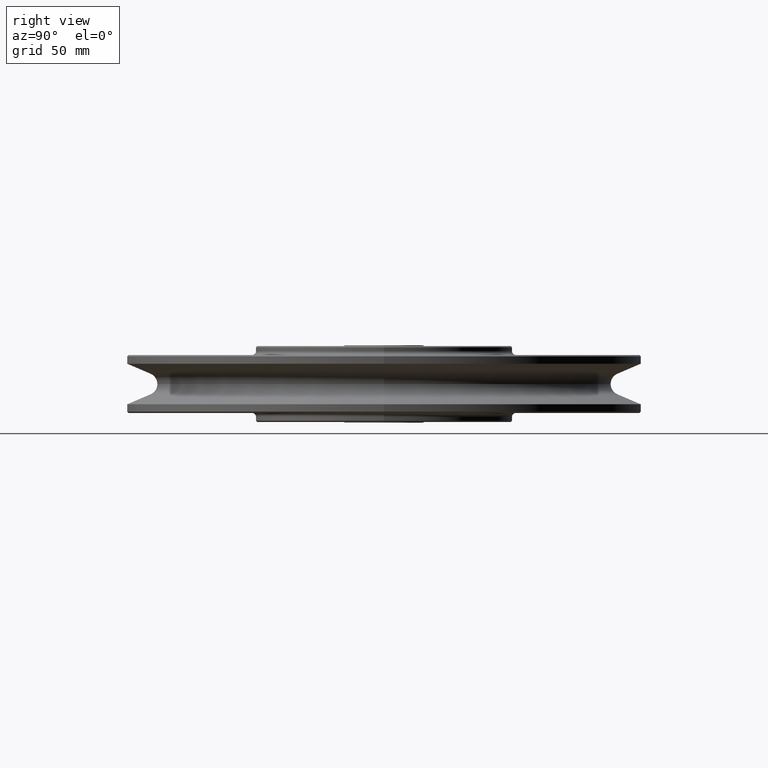
[diagram: clean part render]
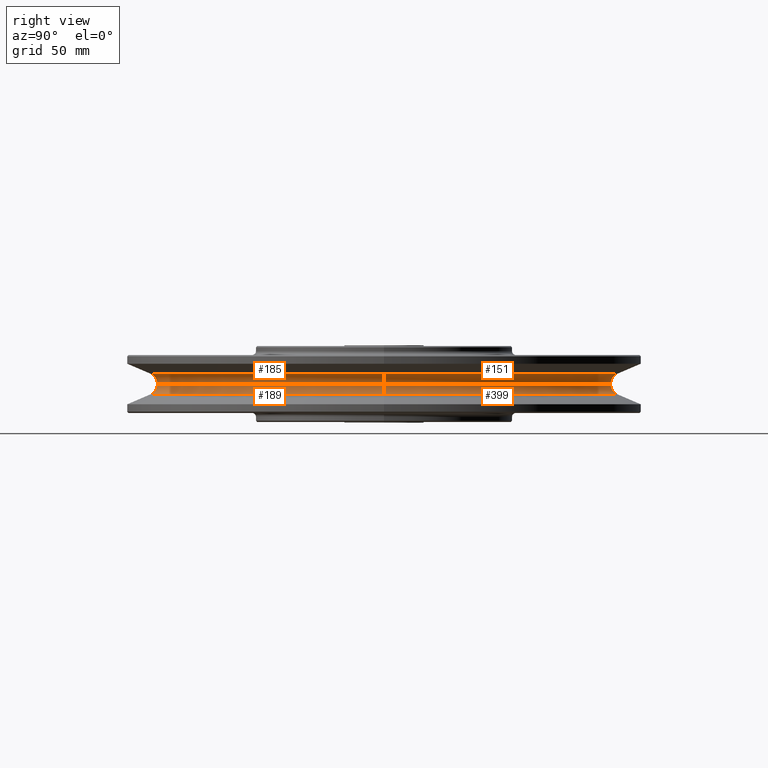
[diagram: same view with one multi-face feature highlighted, each face labeled with its STEP entity id]
A machine part, right view. The highlighted faces form ONE feature: a constant-radius fillet chain: 4 tangent blend faces with common blend radius 8.7 mm. The faces share edges in the B-rep.
Their STEP definitions:
[1] entity #399 (Torus):
#399=ADVANCED_FACE('',(#817),#818,.F.);
#817=FACE_OUTER_BOUND('',#1227,.T.);
#818=TOROIDAL_SURFACE('',#1228,184.7000001863,8.70000018630001);
#1227=EDGE_LOOP('',(#2547,#2548,#2549,#2550));
#1228=AXIS2_PLACEMENT_3D('',#2551,#2552,#2553);
#2547=ORIENTED_EDGE('',*,*,#2564,.T.);
#2548=ORIENTED_EDGE('',*,*,#2658,.T.);
#2549=ORIENTED_EDGE('',*,*,#2663,.T.);
#2550=ORIENTED_EDGE('',*,*,#2656,.T.);
#2551=CARTESIAN_POINT('',(0.0,0.0,0.0));
#2552=DIRECTION('',(0.0,0.0,1.0));
#2553=DIRECTION('',(1.0,0.0,0.0));
#2564=EDGE_CURVE('',#3103,#3104,#3105,.T.);
#2656=EDGE_CURVE('',#3265,#3103,#3266,.T.);
#2658=EDGE_CURVE('',#3104,#3267,#3269,.T.);
#2663=EDGE_CURVE('',#3267,#3265,#3276,.T.);
#3103=VERTEX_POINT('',#3920);
#3104=VERTEX_POINT('',#3921);
#3105=CIRCLE('',#3922,176.0);
#3265=VERTEX_POINT('',#5300);
#3266=CIRCLE('',#5301,8.70000018630001);
#3267=VERTEX_POINT('',#5302);
#3269=CIRCLE('',#5304,8.70000018630001);
#3276=CIRCLE('',#5313,181.370654);
#3920=CARTESIAN_POINT('',(-176.0,2.4455025178662E-014,1.06544273807337E-015));
#3921=CARTESIAN_POINT('',(176.0,-2.4455025178662E-014,1.06544273807337E-015));
#3922=AXIS2_PLACEMENT_3D('',#9118,#9119,#9120);
#5300=CARTESIAN_POINT('',(-181.370654,2.22114990880362E-014,-8.037752));
#5301=AXIS2_PLACEMENT_3D('',#9237,#9238,#9239);
#5302=CARTESIAN_POINT('',(181.370654,0.0,-8.037752));
#5304=AXIS2_PLACEMENT_3D('',#9243,#9244,#9245);
#5313=AXIS2_PLACEMENT_3D('',#9251,#9252,#9253);
#9118=CARTESIAN_POINT('',(0.0,0.0,1.06544273807337E-015));
#9119=DIRECTION('',(-0.0,0.0,-1.0));
#9120=DIRECTION('',(-1.0,0.0,0.0));
#9237=CARTESIAN_POINT('',(-184.7000001863,2.26192264030668E-014,0.0));
#9238=DIRECTION('',(-1.22464679914735E-016,-1.0,0.0));
#9239=DIRECTION('',(-1.0,1.22464679914735E-016,-0.0));
#9243=CARTESIAN_POINT('',(184.7000001863,-2.26192264030668E-014,0.0));
#9244=DIRECTION('',(-1.22464679914735E-016,-1.0,0.0));
#9245=DIRECTION('',(1.0,-1.22464679914735E-016,0.0));
#9251=CARTESIAN_POINT('',(0.0,0.0,-8.037752));
#9252=DIRECTION('',(0.0,0.0,1.0));
#9253=DIRECTION('',(1.0,0.0,0.0));
[2] entity #189 (Torus):
#189=ADVANCED_FACE('',(#478),#479,.F.);
#478=FACE_OUTER_BOUND('',#888,.T.);
#479=TOROIDAL_SURFACE('',#889,184.7000001863,8.70000018630001);
#888=EDGE_LOOP('',(#1387,#1388,#1389,#1390));
#889=AXIS2_PLACEMENT_3D('',#1391,#1392,#1393);
#1387=ORIENTED_EDGE('',*,*,#2649,.T.);
#1388=ORIENTED_EDGE('',*,*,#2656,.F.);
#1389=ORIENTED_EDGE('',*,*,#2657,.T.);
#1390=ORIENTED_EDGE('',*,*,#2658,.F.);
#1391=CARTESIAN_POINT('',(0.0,0.0,0.0));
#1392=DIRECTION('',(0.0,0.0,1.0));
#1393=DIRECTION('',(1.0,0.0,0.0));
#2649=EDGE_CURVE('',#3104,#3103,#3256,.T.);
#2656=EDGE_CURVE('',#3265,#3103,#3266,.T.);
#2657=EDGE_CURVE('',#3265,#3267,#3268,.T.);
#2658=EDGE_CURVE('',#3104,#3267,#3269,.T.);
#3103=VERTEX_POINT('',#3920);
#3104=VERTEX_POINT('',#3921);
#3256=CIRCLE('',#5289,176.0);
#3265=VERTEX_POINT('',#5300);
#3266=CIRCLE('',#5301,8.70000018630001);
#3267=VERTEX_POINT('',#5302);
#3268=CIRCLE('',#5303,181.370654);
#3269=CIRCLE('',#5304,8.70000018630001);
#3920=CARTESIAN_POINT('',(-176.0,2.4455025178662E-014,1.06544273807337E-015));
#3921=CARTESIAN_POINT('',(176.0,-2.4455025178662E-014,1.06544273807337E-015));
#5289=AXIS2_PLACEMENT_3D('',#9226,#9227,#9228);
#5300=CARTESIAN_POINT('',(-181.370654,2.22114990880362E-014,-8.037752));
#5301=AXIS2_PLACEMENT_3D('',#9237,#9238,#9239);
#5302=CARTESIAN_POINT('',(181.370654,0.0,-8.037752));
#5303=AXIS2_PLACEMENT_3D('',#9240,#9241,#9242);
#5304=AXIS2_PLACEMENT_3D('',#9243,#9244,#9245);
#9226=CARTESIAN_POINT('',(0.0,0.0,1.06544273807337E-015));
#9227=DIRECTION('',(-0.0,0.0,-1.0));
#9228=DIRECTION('',(-1.0,0.0,0.0));
#9237=CARTESIAN_POINT('',(-184.7000001863,2.26192264030668E-014,0.0));
#9238=DIRECTION('',(-1.22464679914735E-016,-1.0,0.0));
#9239=DIRECTION('',(-1.0,1.22464679914735E-016,-0.0));
#9240=CARTESIAN_POINT('',(0.0,0.0,-8.037752));
#9241=DIRECTION('',(0.0,0.0,1.0));
#9242=DIRECTION('',(1.0,0.0,0.0));
#9243=CARTESIAN_POINT('',(184.7000001863,-2.26192264030668E-014,0.0));
#9244=DIRECTION('',(-1.22464679914735E-016,-1.0,0.0));
#9245=DIRECTION('',(1.0,-1.22464679914735E-016,0.0));
[3] entity #185 (Torus):
#185=ADVANCED_FACE('',(#472),#473,.F.);
#472=FACE_OUTER_BOUND('',#882,.T.);
#473=TOROIDAL_SURFACE('',#883,184.7000001863,8.70000018630001);
#882=EDGE_LOOP('',(#1371,#1372,#1373,#1374));
#883=AXIS2_PLACEMENT_3D('',#1375,#1376,#1377);
#1371=ORIENTED_EDGE('',*,*,#2649,.F.);
#1372=ORIENTED_EDGE('',*,*,#2567,.F.);
#1373=ORIENTED_EDGE('',*,*,#2650,.F.);
#1374=ORIENTED_EDGE('',*,*,#2565,.F.);
#1375=CARTESIAN_POINT('',(0.0,0.0,0.0));
#1376=DIRECTION('',(0.0,0.0,1.0));
#1377=DIRECTION('',(1.0,0.0,0.0));
#2565=EDGE_CURVE('',#3103,#3106,#3107,.T.);
#2567=EDGE_CURVE('',#3108,#3104,#3110,.T.);
#2649=EDGE_CURVE('',#3104,#3103,#3256,.T.);
#2650=EDGE_CURVE('',#3106,#3108,#3257,.T.);
#3103=VERTEX_POINT('',#3920);
#3104=VERTEX_POINT('',#3921);
#3106=VERTEX_POINT('',#3923);
#3107=CIRCLE('',#3924,8.70000018630001);
#3108=VERTEX_POINT('',#3925);
#3110=CIRCLE('',#3927,8.70000018630001);
#3256=CIRCLE('',#5289,176.0);
#3257=CIRCLE('',#5290,181.370654);
#3920=CARTESIAN_POINT('',(-176.0,2.4455025178662E-014,1.06544273807337E-015));
#3921=CARTESIAN_POINT('',(176.0,-2.4455025178662E-014,1.06544273807337E-015));
#3923=CARTESIAN_POINT('',(-181.370654,2.22114990880362E-014,8.037752));
#3924=AXIS2_PLACEMENT_3D('',#9121,#9122,#9123);
#3925=CARTESIAN_POINT('',(181.370654,0.0,8.037752));
#3927=AXIS2_PLACEMENT_3D('',#9127,#9128,#9129);
#5289=AXIS2_PLACEMENT_3D('',#9226,#9227,#9228);
#5290=AXIS2_PLACEMENT_3D('',#9229,#9230,#9231);
#9121=CARTESIAN_POINT('',(-184.7000001863,2.26192264030668E-014,0.0));
#9122=DIRECTION('',(-1.22464679914735E-016,-1.0,0.0));
#9123=DIRECTION('',(-1.0,1.22464679914735E-016,-0.0));
#9127=CARTESIAN_POINT('',(184.7000001863,-2.26192264030668E-014,0.0));
#9128=DIRECTION('',(-1.22464679914735E-016,-1.0,0.0));
#9129=DIRECTION('',(1.0,-1.22464679914735E-016,0.0));
#9226=CARTESIAN_POINT('',(0.0,0.0,1.06544273807337E-015));
#9227=DIRECTION('',(-0.0,0.0,-1.0));
#9228=DIRECTION('',(-1.0,0.0,0.0));
#9229=CARTESIAN_POINT('',(0.0,0.0,8.037752));
#9230=DIRECTION('',(0.0,0.0,1.0));
#9231=DIRECTION('',(1.0,0.0,0.0));
[4] entity #151 (Torus):
#151=ADVANCED_FACE('',(#421),#422,.F.);
#421=FACE_OUTER_BOUND('',#831,.T.);
#422=TOROIDAL_SURFACE('',#832,184.7000001863,8.70000018630001);
#831=EDGE_LOOP('',(#1235,#1236,#1237,#1238));
#832=AXIS2_PLACEMENT_3D('',#1239,#1240,#1241);
#1235=ORIENTED_EDGE('',*,*,#2564,.F.);
#1236=ORIENTED_EDGE('',*,*,#2565,.T.);
#1237=ORIENTED_EDGE('',*,*,#2566,.F.);
#1238=ORIENTED_EDGE('',*,*,#2567,.T.);
#1239=CARTESIAN_POINT('',(0.0,0.0,0.0));
#1240=DIRECTION('',(0.0,0.0,1.0));
#1241=DIRECTION('',(1.0,0.0,0.0));
#2564=EDGE_CURVE('',#3103,#3104,#3105,.T.);
#2565=EDGE_CURVE('',#3103,#3106,#3107,.T.);
#2566=EDGE_CURVE('',#3108,#3106,#3109,.T.);
#2567=EDGE_CURVE('',#3108,#3104,#3110,.T.);
#3103=VERTEX_POINT('',#3920);
#3104=VERTEX_POINT('',#3921);
#3105=CIRCLE('',#3922,176.0);
#3106=VERTEX_POINT('',#3923);
#3107=CIRCLE('',#3924,8.70000018630001);
#3108=VERTEX_POINT('',#3925);
#3109=CIRCLE('',#3926,181.370654);
#3110=CIRCLE('',#3927,8.70000018630001);
#3920=CARTESIAN_POINT('',(-176.0,2.4455025178662E-014,1.06544273807337E-015));
#3921=CARTESIAN_POINT('',(176.0,-2.4455025178662E-014,1.06544273807337E-015));
#3922=AXIS2_PLACEMENT_3D('',#9118,#9119,#9120);
#3923=CARTESIAN_POINT('',(-181.370654,2.22114990880362E-014,8.037752));
#3924=AXIS2_PLACEMENT_3D('',#9121,#9122,#9123);
#3925=CARTESIAN_POINT('',(181.370654,0.0,8.037752));
#3926=AXIS2_PLACEMENT_3D('',#9124,#9125,#9126);
#3927=AXIS2_PLACEMENT_3D('',#9127,#9128,#9129);
#9118=CARTESIAN_POINT('',(0.0,0.0,1.06544273807337E-015));
#9119=DIRECTION('',(-0.0,0.0,-1.0));
#9120=DIRECTION('',(-1.0,0.0,0.0));
#9121=CARTESIAN_POINT('',(-184.7000001863,2.26192264030668E-014,0.0));
#9122=DIRECTION('',(-1.22464679914735E-016,-1.0,0.0));
#9123=DIRECTION('',(-1.0,1.22464679914735E-016,-0.0));
#9124=CARTESIAN_POINT('',(0.0,0.0,8.037752));
#9125=DIRECTION('',(0.0,0.0,1.0));
#9126=DIRECTION('',(1.0,0.0,0.0));
#9127=CARTESIAN_POINT('',(184.7000001863,-2.26192264030668E-014,0.0));
#9128=DIRECTION('',(-1.22464679914735E-016,-1.0,0.0));
#9129=DIRECTION('',(1.0,-1.22464679914735E-016,0.0));